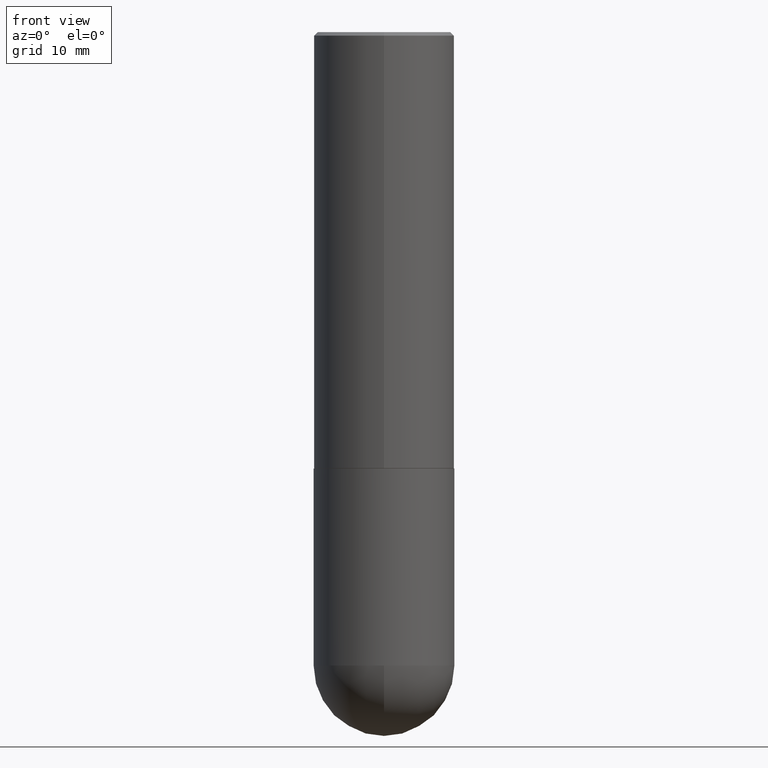
[diagram: clean part render]
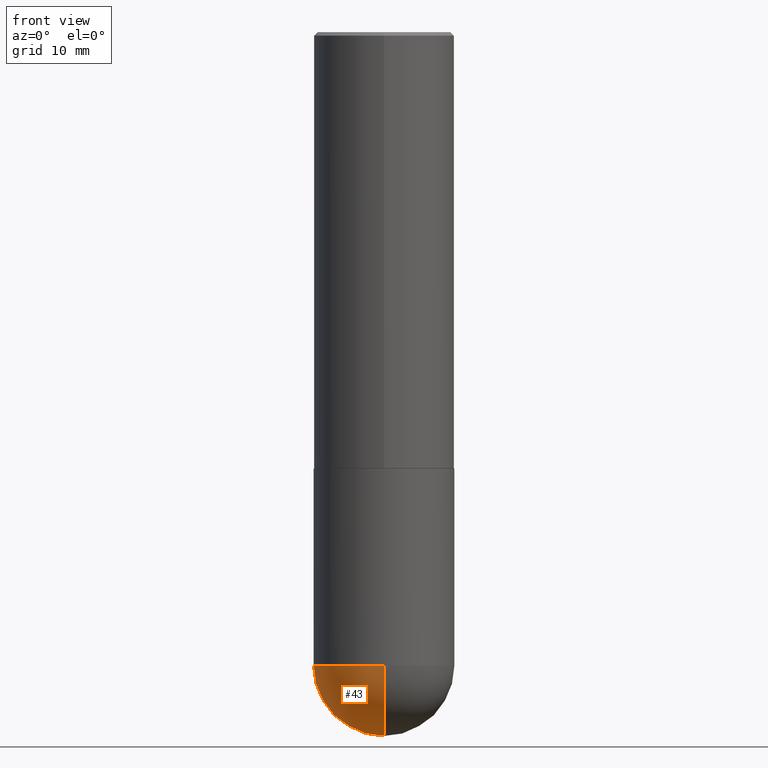
[diagram: same view with one face highlighted and labeled with its STEP entity id]
A machine part, front view. The second image highlights one B-rep face of the part: STEP entity #43.
In plain terms, the highlighted spherical surface has radius 10 mm.
Its self-contained STEP definition (entity closure, byte-faithful):
#18 = AXIS2_PLACEMENT_3D ( 'NONE', #195, #69, #173 ) ;
#20 = ORIENTED_EDGE ( 'NONE', *, *, #269, .F. ) ;
#21 = EDGE_CURVE ( 'NONE', #47, #130, #242, .T. ) ;
#34 = DIRECTION ( 'NONE',  ( 6.982962677686265133E-15, 1.000000000000000000, 0.000000000000000000 ) ) ;
#41 = CARTESIAN_POINT ( 'NONE',  ( 9.313524860439493426E-29, -1.419603722692429674E-14, -3.937000000000000277 ) ) ;
#43 = ADVANCED_FACE ( 'NONE', ( #394 ), #254, .T. ) ;
#47 = VERTEX_POINT ( 'NONE', #41 ) ;
#53 = ORIENTED_EDGE ( 'NONE', *, *, #21, .F. ) ;
#54 = DIRECTION ( 'NONE',  ( -2.445468806185136597E-29, 3.491481338843145583E-15, 1.000000000000000000 ) ) ;
#55 = DIRECTION ( 'NONE',  ( 1.000000000000000000, -6.982962677686266711E-15, 0.000000000000000000 ) ) ;
#57 = AXIS2_PLACEMENT_3D ( 'NONE', #352, #97, #34 ) ;
#69 = DIRECTION ( 'NONE',  ( -1.000000000000000000, 7.105427357601001070E-15, -4.926315508542082329E-29 ) ) ;
#97 = DIRECTION ( 'NONE',  ( 1.000000000000000000, -6.982962677686265922E-15, 4.883557194083112340E-29 ) ) ;
#127 = DIRECTION ( 'NONE',  ( -2.445468806185136597E-29, 3.491481338843145583E-15, 1.000000000000000000 ) ) ;
#130 = VERTEX_POINT ( 'NONE', #161 ) ;
#151 = AXIS2_PLACEMENT_3D ( 'NONE', #294, #362, #323 ) ;
#153 = CARTESIAN_POINT ( 'NONE',  ( 8.665029620955792948E-29, -1.237136582792291707E-14, -3.543299999999999450 ) ) ;
#161 = CARTESIAN_POINT ( 'NONE',  ( 2.749192406205169202E-15, 0.3936999999999876709, -3.543300000000000782 ) ) ;
#164 = ORIENTED_EDGE ( 'NONE', *, *, #191, .F. ) ;
#173 = DIRECTION ( 'NONE',  ( -7.105427357600999492E-15, -1.000000000000000000, 0.000000000000000000 ) ) ;
#191 = EDGE_CURVE ( 'NONE', #130, #275, #342, .T. ) ;
#195 = CARTESIAN_POINT ( 'NONE',  ( 8.333909843041907822E-29, -1.284554819606296579E-14, -3.543299999999999894 ) ) ;
#198 = ORIENTED_EDGE ( 'NONE', *, *, #349, .T. ) ;
#219 = DIRECTION ( 'NONE',  ( 1.000000000000000000, -6.982962677686266711E-15, 0.000000000000000000 ) ) ;
#242 = CIRCLE ( 'NONE', #57, 0.3937000000000003830 ) ;
#248 = CARTESIAN_POINT ( 'NONE',  ( -0.3937000000000001054, -7.649454563265064966E-15, -3.543299999999999450 ) ) ;
#254 = SPHERICAL_SURFACE ( 'NONE', #151, 0.3937000000000003830 ) ;
#259 = CIRCLE ( 'NONE', #18, 0.3937000000000003830 ) ;
#269 = EDGE_CURVE ( 'NONE', #275, #333, #372, .T. ) ;
#275 = VERTEX_POINT ( 'NONE', #248 ) ;
#294 = CARTESIAN_POINT ( 'NONE',  ( 8.333909843041907822E-29, -1.284554819606296579E-14, -3.543299999999999894 ) ) ;
#323 = DIRECTION ( 'NONE',  ( 6.982962677686265922E-15, 1.000000000000000000, -4.163344669033671690E-15 ) ) ;
#324 = EDGE_LOOP ( 'NONE', ( #53, #198, #20, #164 ) ) ;
#332 = AXIS2_PLACEMENT_3D ( 'NONE', #379, #127, #55 ) ;
#333 = VERTEX_POINT ( 'NONE', #384 ) ;
#342 = CIRCLE ( 'NONE', #332, 0.3937000000000001054 ) ;
#349 = EDGE_CURVE ( 'NONE', #47, #333, #259, .T. ) ;
#352 = CARTESIAN_POINT ( 'NONE',  ( 8.333909843041907822E-29, -1.284554819606296579E-14, -3.543299999999999894 ) ) ;
#354 = AXIS2_PLACEMENT_3D ( 'NONE', #153, #54, #219 ) ;
#362 = DIRECTION ( 'NONE',  ( -1.000000000000000000, 6.982962677686265922E-15, -4.883557194083112340E-29 ) ) ;
#372 = CIRCLE ( 'NONE', #354, 0.3937000000000001054 ) ;
#379 = CARTESIAN_POINT ( 'NONE',  ( 8.665029620955792948E-29, -1.237136582792291707E-14, -3.543299999999999450 ) ) ;
#384 = CARTESIAN_POINT ( 'NONE',  ( -2.797406750687430773E-15, -0.3937000000000128175, -3.543299999999997674 ) ) ;
#394 = FACE_OUTER_BOUND ( 'NONE', #324, .T. ) ;